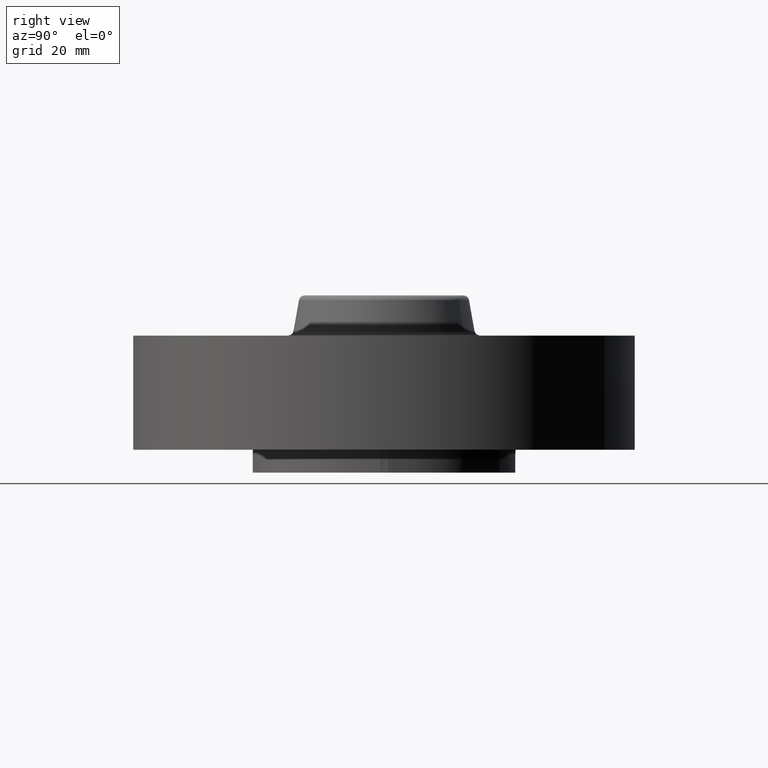
[diagram: clean part render]
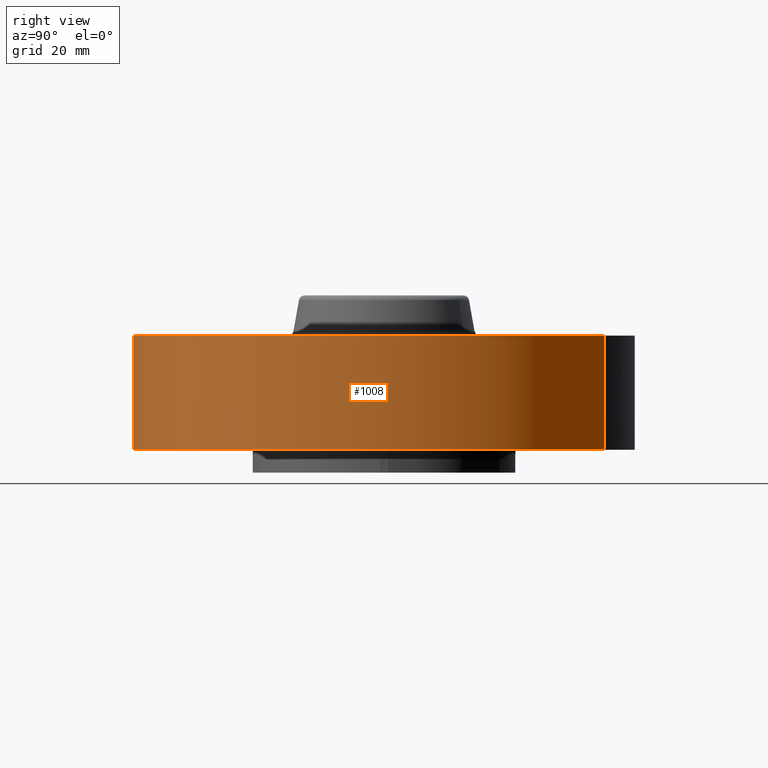
[diagram: same view with one face highlighted and labeled with its STEP entity id]
A machine part, right view. The second image highlights one B-rep face of the part: STEP entity #1008.
In plain terms, the highlighted cylindrical surface (partial cylindrical patch) has radius 69.85 mm, axis along (0, 0, -1).
Its self-contained STEP definition (entity closure, byte-faithful):
#695=AXIS2_PLACEMENT_3D('Circle Axis2P3D',#693,#694,$) ;
#981=AXIS2_PLACEMENT_3D('Cylinder Axis2P3D',#978,#979,#980) ;
#992=AXIS2_PLACEMENT_3D('Circle Axis2P3D',#990,#991,$) ;
#688=CARTESIAN_POINT('Vertex',(-1.31842023117,-2.41335204521,2.79741234551E-016)) ;
#690=CARTESIAN_POINT('Vertex',(1.31842023117,2.41335204521,2.79741234551E-016)) ;
#693=CARTESIAN_POINT('Axis2P3D Location',(0.,0.,0.)) ;
#978=CARTESIAN_POINT('Axis2P3D Location',(0.,0.,0.720000000003)) ;
#983=CARTESIAN_POINT('Line Origine',(1.31842023117,2.41335204521,0.625000000003)) ;
#987=CARTESIAN_POINT('Vertex',(1.31842023117,2.41335204521,1.25000000001)) ;
#990=CARTESIAN_POINT('Axis2P3D Location',(0.,0.,1.25000000001)) ;
#994=CARTESIAN_POINT('Vertex',(-1.31842023117,-2.41335204521,1.25000000001)) ;
#997=CARTESIAN_POINT('Line Origine',(-1.31842023117,-2.41335204521,0.625000000003)) ;
#694=DIRECTION('Axis2P3D Direction',(0.,0.,-0.0393700787402)) ;
#979=DIRECTION('Axis2P3D Direction',(0.,0.,-0.0393700787402)) ;
#980=DIRECTION('Axis2P3D XDirection',(-0.0188750212049,-0.0345504945626,0.)) ;
#984=DIRECTION('Vector Direction',(0.,0.,-0.0393700787402)) ;
#991=DIRECTION('Axis2P3D Direction',(0.,0.,-0.0393700787402)) ;
#998=DIRECTION('Vector Direction',(0.,0.,-0.0393700787402)) ;
#985=VECTOR('Line Direction',#984,0.0393700787402) ;
#999=VECTOR('Line Direction',#998,0.0393700787402) ;
#1003=ORIENTED_EDGE('',*,*,#697,.F.) ;
#1004=ORIENTED_EDGE('',*,*,#989,.T.) ;
#1005=ORIENTED_EDGE('',*,*,#996,.T.) ;
#1006=ORIENTED_EDGE('',*,*,#1001,.F.) ;
#1008=ADVANCED_FACE('PartBody',(#1007),#982,.T.) ;
#696=CIRCLE('generated circle',#695,2.75000000001) ;
#993=CIRCLE('generated circle',#992,2.75000000001) ;
#982=CYLINDRICAL_SURFACE('generated cylinder',#981,2.75000000001) ;
#697=EDGE_CURVE('',#691,#689,#696,.T.) ;
#989=EDGE_CURVE('',#691,#988,#986,.F.) ;
#996=EDGE_CURVE('',#988,#995,#993,.T.) ;
#1001=EDGE_CURVE('',#689,#995,#1000,.F.) ;
#1002=EDGE_LOOP('',(#1003,#1004,#1005,#1006)) ;
#1007=FACE_OUTER_BOUND('',#1002,.T.) ;
#986=LINE('Line',#983,#985) ;
#1000=LINE('Line',#997,#999) ;
#689=VERTEX_POINT('',#688) ;
#691=VERTEX_POINT('',#690) ;
#988=VERTEX_POINT('',#987) ;
#995=VERTEX_POINT('',#994) ;